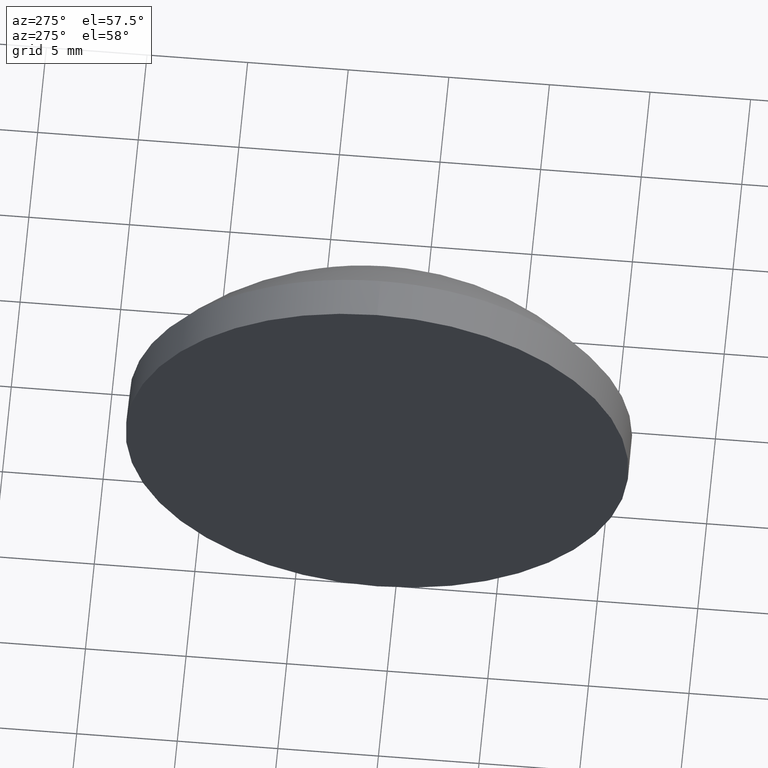
[diagram: clean part render]
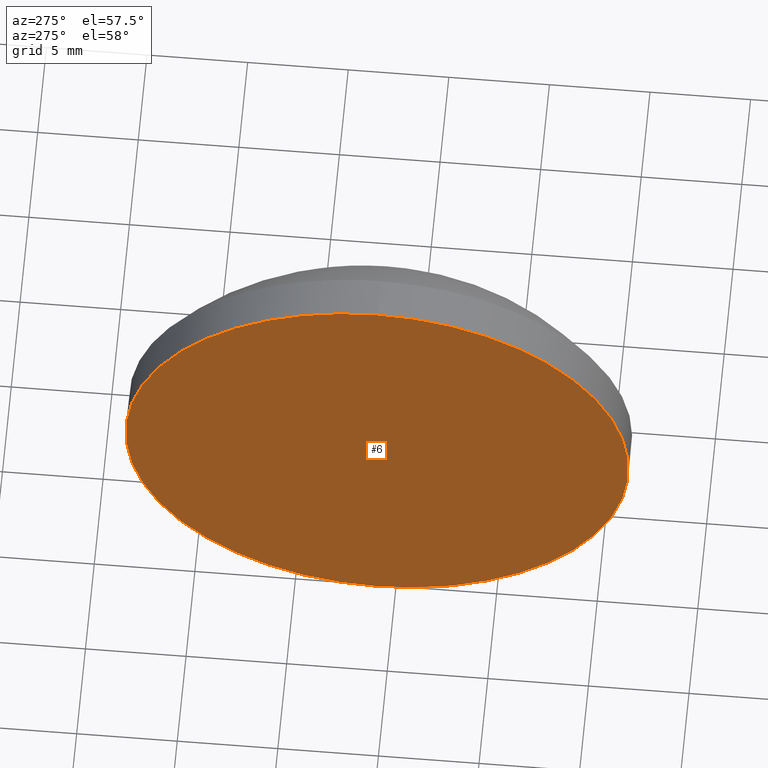
[diagram: same view with one face highlighted and labeled with its STEP entity id]
A machine part, auxiliary view. The second image highlights one B-rep face of the part: STEP entity #6.
In plain terms, the highlighted planar face has unit normal (1, 0, 0).
Its self-contained STEP definition (entity closure, byte-faithful):
#6 = ADVANCED_FACE ( 'NONE', ( #96 ), #101, .F. ) ;
#7 = DIRECTION ( 'NONE',  ( 1.000000000000000000, 0.0000000000000000000, 0.0000000000000000000 ) ) ;
#10 = AXIS2_PLACEMENT_3D ( 'NONE', #14, #171, #121 ) ;
#14 = CARTESIAN_POINT ( 'NONE',  ( 404.5727201653537600, 15.90499227710017900, 0.0000000000000000000 ) ) ;
#35 = CIRCLE ( 'NONE', #78, 12.49999999999999600 ) ;
#64 = CIRCLE ( 'NONE', #10, 12.49999999999999600 ) ;
#78 = AXIS2_PLACEMENT_3D ( 'NONE', #132, #158, #147 ) ;
#84 = CARTESIAN_POINT ( 'NONE',  ( 404.5727201653537600, 15.90499227710017900, 0.0000000000000000000 ) ) ;
#93 = ORIENTED_EDGE ( 'NONE', *, *, #165, .T. ) ;
#96 = FACE_OUTER_BOUND ( 'NONE', #176, .T. ) ;
#101 = PLANE ( 'NONE',  #178 ) ;
#107 = ORIENTED_EDGE ( 'NONE', *, *, #172, .T. ) ;
#121 = DIRECTION ( 'NONE',  ( 0.0000000000000000000, 0.0000000000000000000, 1.000000000000000000 ) ) ;
#127 = VERTEX_POINT ( 'NONE', #156 ) ;
#132 = CARTESIAN_POINT ( 'NONE',  ( 404.5727201653537600, 15.90499227710017900, 0.0000000000000000000 ) ) ;
#147 = DIRECTION ( 'NONE',  ( 0.0000000000000000000, 0.0000000000000000000, 1.000000000000000000 ) ) ;
#156 = CARTESIAN_POINT ( 'NONE',  ( 404.5727201653537600, 15.90499227710017900, -12.49999999999999600 ) ) ;
#158 = DIRECTION ( 'NONE',  ( -1.000000000000000000, -0.0000000000000000000, -0.0000000000000000000 ) ) ;
#165 = EDGE_CURVE ( 'NONE', #127, #170, #64, .T. ) ;
#168 = CARTESIAN_POINT ( 'NONE',  ( 404.5727201653537600, 15.90499227710017900, 12.49999999999999600 ) ) ;
#170 = VERTEX_POINT ( 'NONE', #168 ) ;
#171 = DIRECTION ( 'NONE',  ( -1.000000000000000000, -0.0000000000000000000, -0.0000000000000000000 ) ) ;
#172 = EDGE_CURVE ( 'NONE', #170, #127, #35, .T. ) ;
#176 = EDGE_LOOP ( 'NONE', ( #107, #93 ) ) ;
#178 = AXIS2_PLACEMENT_3D ( 'NONE', #84, #7, #180 ) ;
#180 = DIRECTION ( 'NONE',  ( 0.0000000000000000000, 0.0000000000000000000, -1.000000000000000000 ) ) ;